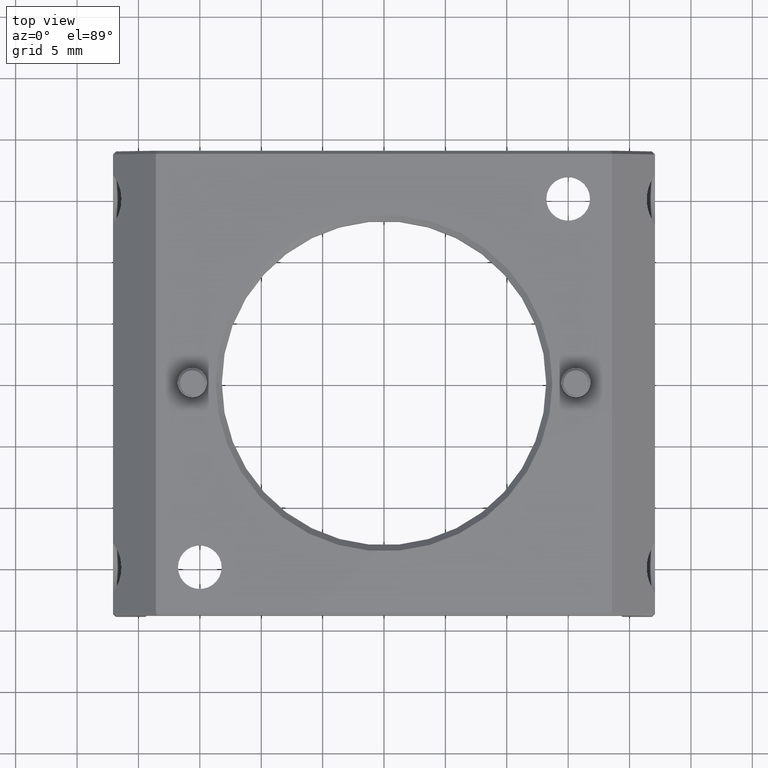
[diagram: clean part render]
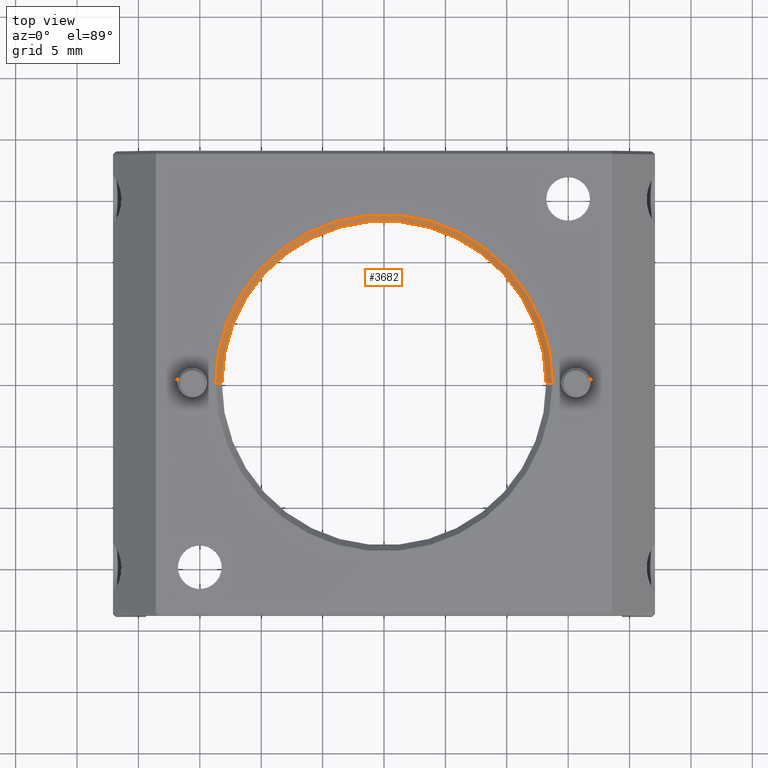
[diagram: same view with one face highlighted and labeled with its STEP entity id]
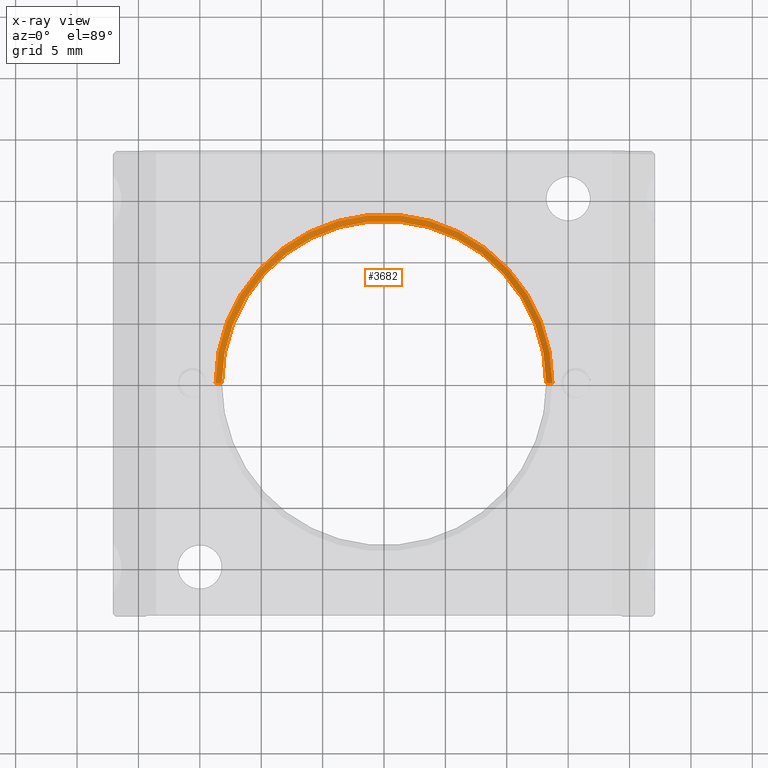
[diagram: x-ray of the same camera — body ghosted, the highlighted face saturated]
A machine part, top view. The second image highlights one B-rep face of the part: STEP entity #3682.
The next image is the same camera in x-ray: the body ghosted, the highlighted face saturated — about 0% of this face is hidden behind the body in this view.
In plain terms, the highlighted conical surface has half-angle 45 deg.
Its self-contained STEP definition (entity closure, byte-faithful):
#62 = AXIS2_PLACEMENT_3D ( 'NONE', #262, #4258, #6612 ) ;
#166 = EDGE_CURVE ( 'NONE', #6797, #5168, #3636, .T. ) ;
#190 = AXIS2_PLACEMENT_3D ( 'NONE', #2571, #4294, #3226 ) ;
#262 = CARTESIAN_POINT ( 'NONE',  ( 0.000000000000000000, 0.000000000000000000, 2.290000000000004032 ) ) ;
#449 = ORIENTED_EDGE ( 'NONE', *, *, #3798, .F. ) ;
#468 = DIRECTION ( 'NONE',  ( 0.7071067811865474617, 0.000000000000000000, 0.7071067811865474617 ) ) ;
#889 = EDGE_CURVE ( 'NONE', #3521, #3929, #3158, .T. ) ;
#988 = ORIENTED_EDGE ( 'NONE', *, *, #166, .F. ) ;
#1485 = CONICAL_SURFACE ( 'NONE', #2425, 13.71000000000000441, 0.7853981633974482790 ) ;
#1807 = ORIENTED_EDGE ( 'NONE', *, *, #889, .T. ) ;
#2106 = CARTESIAN_POINT ( 'NONE',  ( -13.71000000000000441, 1.678990761631021942E-15, 2.790000000000007585 ) ) ;
#2425 = AXIS2_PLACEMENT_3D ( 'NONE', #6369, #4048, #6293 ) ;
#2465 = CIRCLE ( 'NONE', #190, 13.71000000000000441 ) ;
#2499 = EDGE_LOOP ( 'NONE', ( #988, #6536, #1807, #449 ) ) ;
#2550 = CARTESIAN_POINT ( 'NONE',  ( 13.71000000000000441, 0.000000000000000000, 2.790000000000007585 ) ) ;
#2571 = CARTESIAN_POINT ( 'NONE',  ( 0.000000000000000000, 0.000000000000000000, 2.790000000000007585 ) ) ;
#3158 = LINE ( 'NONE', #7423, #5965 ) ;
#3226 = DIRECTION ( 'NONE',  ( -1.000000000000000000, 0.000000000000000000, 0.000000000000000000 ) ) ;
#3521 = VERTEX_POINT ( 'NONE', #6269 ) ;
#3542 = CARTESIAN_POINT ( 'NONE',  ( -13.71000000000000441, 1.678990761631021942E-15, 2.790000000000007585 ) ) ;
#3636 = LINE ( 'NONE', #3542, #6682 ) ;
#3682 = ADVANCED_FACE ( 'NONE', ( #6262 ), #1485, .F. ) ;
#3798 = EDGE_CURVE ( 'NONE', #5168, #3929, #2465, .T. ) ;
#3929 = VERTEX_POINT ( 'NONE', #2550 ) ;
#4048 = DIRECTION ( 'NONE',  ( -0.000000000000000000, -0.000000000000000000, 1.000000000000000000 ) ) ;
#4093 = CIRCLE ( 'NONE', #62, 13.21000000000000085 ) ;
#4102 = DIRECTION ( 'NONE',  ( -0.7071067811865474617, 8.659560562354932858E-17, 0.7071067811865474617 ) ) ;
#4258 = DIRECTION ( 'NONE',  ( -0.000000000000000000, -0.000000000000000000, 1.000000000000000000 ) ) ;
#4294 = DIRECTION ( 'NONE',  ( 0.000000000000000000, 0.000000000000000000, -1.000000000000000000 ) ) ;
#4418 = CARTESIAN_POINT ( 'NONE',  ( -13.21000000000000085, 0.000000000000000000, 2.290000000000004032 ) ) ;
#5168 = VERTEX_POINT ( 'NONE', #2106 ) ;
#5965 = VECTOR ( 'NONE', #468, 1000.000000000000114 ) ;
#6262 = FACE_OUTER_BOUND ( 'NONE', #2499, .T. ) ;
#6269 = CARTESIAN_POINT ( 'NONE',  ( 13.21000000000000085, 1.617758421673653776E-15, 2.290000000000004032 ) ) ;
#6293 = DIRECTION ( 'NONE',  ( 1.000000000000000000, 0.000000000000000000, 0.000000000000000000 ) ) ;
#6369 = CARTESIAN_POINT ( 'NONE',  ( 0.000000000000000000, 0.000000000000000000, 2.790000000000007585 ) ) ;
#6536 = ORIENTED_EDGE ( 'NONE', *, *, #7190, .F. ) ;
#6612 = DIRECTION ( 'NONE',  ( -1.000000000000000000, 0.000000000000000000, 0.000000000000000000 ) ) ;
#6682 = VECTOR ( 'NONE', #4102, 1000.000000000000114 ) ;
#6797 = VERTEX_POINT ( 'NONE', #4418 ) ;
#7190 = EDGE_CURVE ( 'NONE', #3521, #6797, #4093, .T. ) ;
#7423 = CARTESIAN_POINT ( 'NONE',  ( 13.71000000000000441, 0.000000000000000000, 2.790000000000007585 ) ) ;